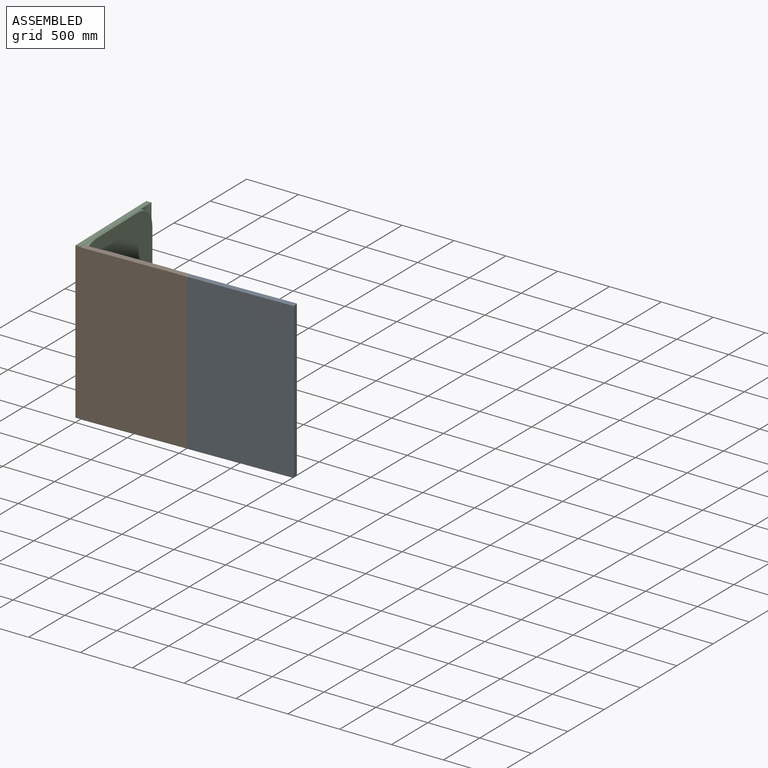
[diagram: assembled view]
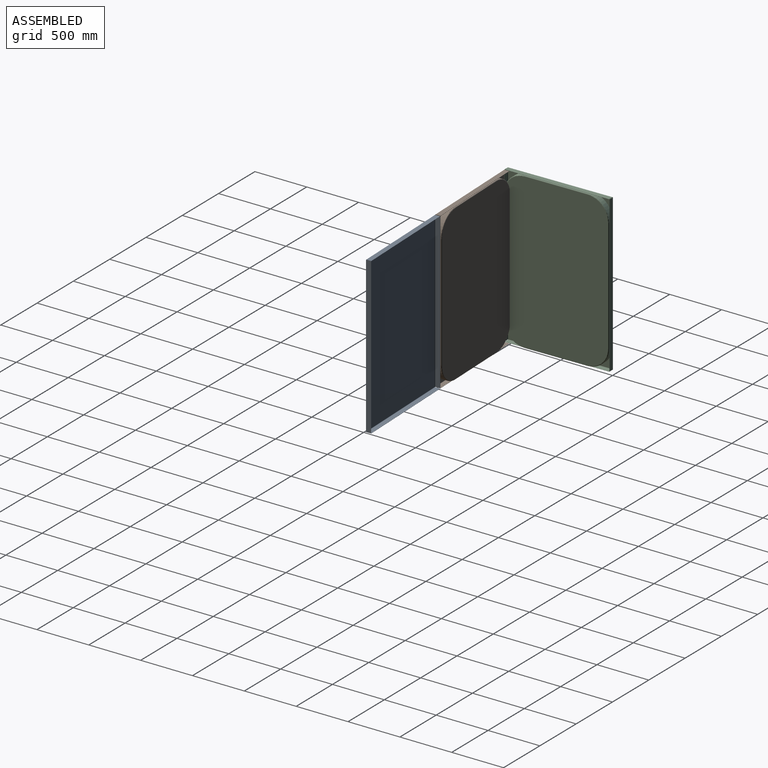
[diagram: assembled view, second angle]
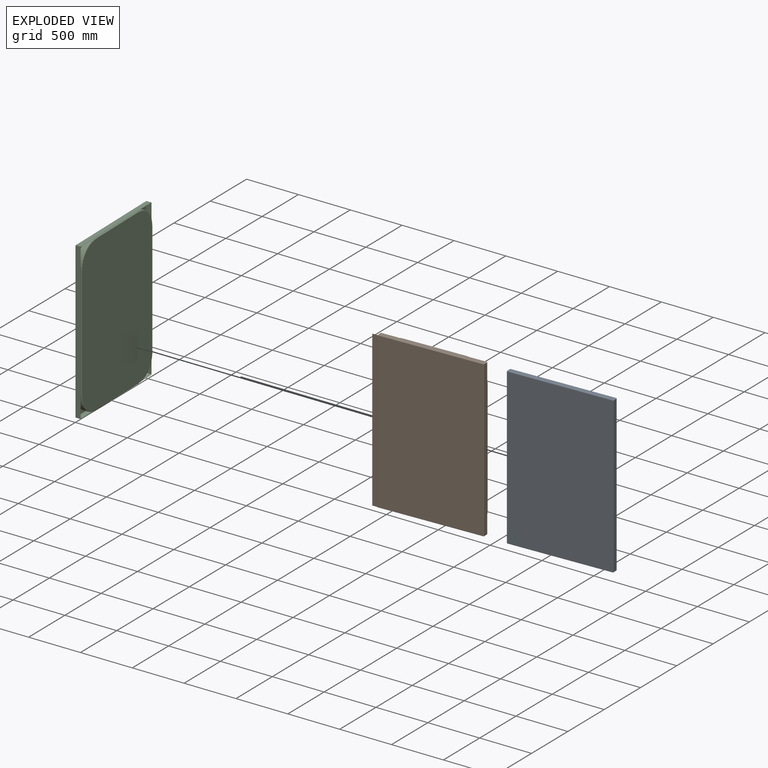
[diagram: exploded view]
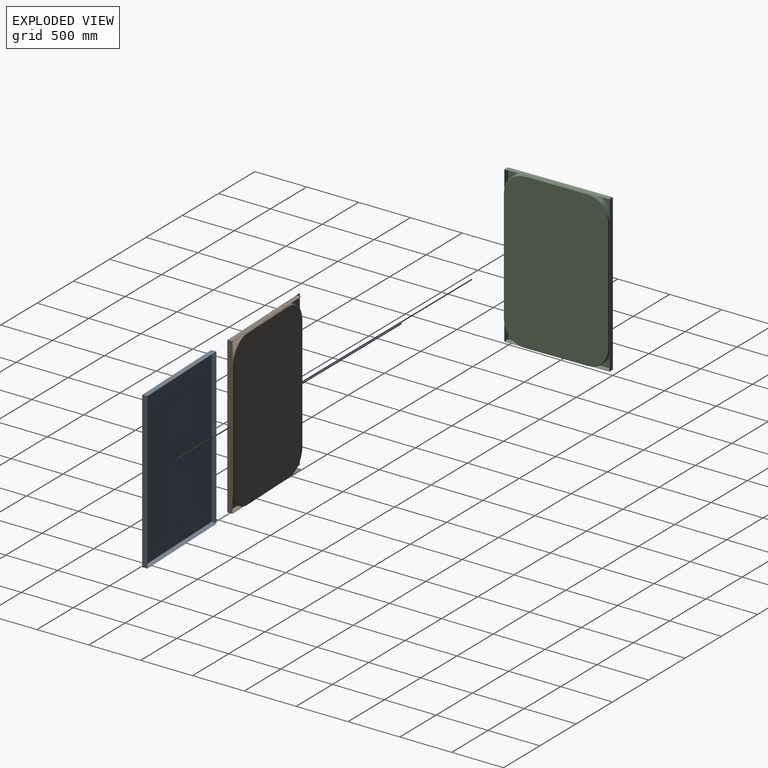
[diagram: exploded view, second angle]
ASSEMBLY  parts=3 mates=2
PART A: 42 faces, bbox 1003.2x50x1503.2 mm
  f0: plane 1495.4x995.4mm, normal (0,1,0), area 1488521.2mm2, adj f12,f22,f32,f41
  f1: plane 1495.4x995.4mm, normal (0,-1,0), area 1488521.2mm2, adj f11,f21,f31,f40
  f2: plane 2.3x1.6mm, normal (0,-1,0), area 3.7mm2, adj f6,f7,f8,f9
  f3: plane 1500x1.6mm, normal (0,1,0), area 2400mm2, adj f4,f6,f7,f8
  f4: plane 46.1x1.6mm, normal (0,0,-1), area 73.8mm2, adj f3,f5,f7,f8
  f5: plane 2.3x1.6mm, normal (0,-1,0), area 3.7mm2, adj f4,f7,f8,f10
  f6: plane 46.1x1.6mm, normal (0,0,1), area 73.8mm2, adj f2,f3,f7,f8
  f7: plane 1500x46.1mm, normal (-1,0,0), area 69150mm2, adj f2,f3,f4,f5,f6,f12
  f8: plane 1500x46.1mm, normal (1,0,0), area 69150mm2, adj f2,f3,f4,f5,f6,f11
  f9: plane 3.9x3.9mm, normal (0,0,1), area 7.8mm2, adj f2,f11,f12,f38
  f10: plane 3.9x3.9mm, normal (0,0,-1), area 7.8mm2, adj f5,f11,f12,f20
  f11: cylinder r=3.9mm len=1495.4mm, axis (0,0,1), area 9161mm2, adj f1,f8,f9,f10
  f12: cylinder r=2.3mm len=1495.4mm, axis (0,0,1), area 5402.6mm2, adj f0,f7,f9,f10
  f13: plane 997.7x1.6mm, normal (0,1,0), area 1596.3mm2, adj f14,f16,f17,f18
  f14: plane 46.1x1.6mm, normal (-1,0,0), area 73.8mm2, adj f13,f15,f17,f18
  f15: plane 2.3x1.6mm, normal (0,-1,0), area 3.7mm2, adj f14,f17,f18,f19
  f16: plane 46.1x1.6mm, normal (1,0,0), area 73.8mm2, adj f13,f17,f18,f20
  f17: plane 997.7x46.1mm, normal (0,0,1), area 45994mm2, adj f13,f14,f15,f16,f22
  f18: plane 997.7x46.1mm, normal (0,0,-1), area 45994mm2, adj f13,f14,f15,f16,f21
  f19: plane 3.9x3.9mm, normal (-1,0,0), area 7.8mm2, adj f15,f21,f22,f29
  f20: plane 3.9x3.9mm, normal (1,0,0), area 7.8mm2, adj f10,f16,f21,f22
  f21: cylinder r=3.9mm len=995.4mm, axis (-1,0,0), area 6097.9mm2, adj f1,f18,f19,f20
  f22: cylinder r=2.3mm len=995.4mm, axis (-1,0,0), area 3596.2mm2, adj f0,f17,f19,f20
  f23: plane 1497.7x1.6mm, normal (0,1,0), area 2396.3mm2, adj f24,f26,f27,f28
  f24: plane 46.1x1.6mm, normal (0,0,1), area 73.8mm2, adj f23,f25,f27,f28
  f25: plane 2.3x1.6mm, normal (0,-1,0), area 3.7mm2, adj f24,f27,f28,f30
  f26: plane 46.1x1.6mm, normal (0,0,-1), area 73.8mm2, adj f23,f27,f28,f29
  f27: plane 1497.7x46.1mm, normal (1,0,0), area 69044mm2, adj f23,f24,f25,f26,f32
  f28: plane 1497.7x46.1mm, normal (-1,0,0), area 69044mm2, adj f23,f24,f25,f26,f31
  f29: plane 3.9x3.9mm, normal (0,0,-1), area 7.8mm2, adj f19,f26,f31,f32
  f30: plane 3.9x3.9mm, normal (0,0,1), area 7.8mm2, adj f25,f31,f32,f39
  f31: cylinder r=3.9mm len=1495.4mm, axis (0,0,-1), area 9161mm2, adj f1,f28,f29,f30
  f32: cylinder r=2.3mm len=1495.4mm, axis (0,0,-1), area 5402.6mm2, adj f0,f27,f29,f30
  f33: plane 995.4x1.6mm, normal (0,1,0), area 1592.6mm2, adj f34,f35,f36,f37
  f34: plane 46.1x1.6mm, normal (1,0,0), area 73.8mm2, adj f33,f36,f37,f38
  f35: plane 46.1x1.6mm, normal (-1,0,0), area 73.8mm2, adj f33,f36,f37,f39
  f36: plane 995.4x46.1mm, normal (0,0,-1), area 45887.9mm2, adj f33,f34,f35,f41
  f37: plane 995.4x46.1mm, normal (0,0,1), area 45887.9mm2, adj f33,f34,f35,f40
  f38: plane 3.9x3.9mm, normal (1,0,0), area 7.8mm2, adj f9,f34,f40,f41
  f39: plane 3.9x3.9mm, normal (-1,0,0), area 7.8mm2, adj f30,f35,f40,f41
  f40: cylinder r=3.9mm len=995.4mm, axis (1,0,0), area 6097.9mm2, adj f1,f37,f38,f39
  f41: cylinder r=2.3mm len=995.4mm, axis (1,0,0), area 3596.2mm2, adj f0,f36,f38,f39
PART B: 67 faces, bbox 1066.5x61.6x1533 mm
  f0: plane 1500x46.1mm, normal (-1,0,0), area 21410mm2, adj f5,f6,f7,f8,f9,f14,f43,f45
  f1: plane 997.7x46.1mm, normal (0,0,1), area 19954mm2, adj f15,f16,f17,f18,f23,f43,f49,f62
  f2: plane 997.68x46.1mm, normal (0,0,-1), area 19953mm2, adj f34,f35,f36,f41,f45,f47,f63
  f3: plane 1495.4x997.68mm, normal (0,1,0), area 49471.5mm2, adj f14,f23,f33,f41,f59,f60,f61,f62
  f4: plane 1495.4x997.68mm, normal (0,-1,0), area 1491930.6mm2, adj f13,f22,f32,f40
  f5: plane 2.3x1.6mm, normal (0,-1,0), area 3.7mm2, adj f0,f9,f10,f11
  f6: plane 1500x1.6mm, normal (0,1,0), area 2400mm2, adj f0,f7,f9,f10,f44
  f7: plane 46.1x1.6mm, normal (0,0,-1), area 73.8mm2, adj f0,f6,f8,f10
  f8: plane 2.3x1.6mm, normal (0,-1,0), area 3.7mm2, adj f0,f7,f10,f12
  f9: plane 46.1x1.6mm, normal (0,0,1), area 73.8mm2, adj f0,f5,f6,f10
  f10: plane 1500x46.1mm, normal (1,0,0), area 69150mm2, adj f5,f6,f7,f8,f9,f13
  f11: plane 3.9x3.9mm, normal (0,0,1), area 7.8mm2, adj f5,f13,f14,f38
  f12: plane 3.9x3.9mm, normal (0,0,-1), area 7.8mm2, adj f8,f13,f14,f21
  f13: cylinder r=3.9mm len=1495.4mm, axis (0,0,1), area 9161mm2, adj f4,f10,f11,f12
  f14: cylinder r=2.3mm len=1495.4mm, axis (0,0,1), area 5402.6mm2, adj f0,f3,f11,f12
  f15: plane 997.7x1.6mm, normal (0,1,0), area 1596.3mm2, adj f1,f16,f18,f19,f42
  f16: plane 46.1x1.6mm, normal (-1,0,0), area 73.8mm2, adj f1,f15,f17,f19
  f17: plane 1.6x0.02mm, normal (0,-1,0), area 0mm2, adj f1,f16,f19,f20
  f18: plane 46.1x1.6mm, normal (1,0,0), area 73.8mm2, adj f1,f15,f19,f21
  f19: plane 997.7x46.1mm, normal (0,0,-1), area 45994mm2, adj f15,f16,f17,f18,f22
  f20: plane 3.9x3.9mm, normal (-1,0,0), area 7.8mm2, adj f17,f22,f23,f30
  f21: plane 3.9x3.9mm, normal (1,0,0), area 7.8mm2, adj f12,f18,f22,f23
  f22: cylinder r=3.9mm len=997.68mm, axis (-1,0,0), area 6111.9mm2, adj f4,f19,f20,f21
  f23: cylinder r=2.3mm len=997.68mm, axis (-1,0,0), area 3604.4mm2, adj f1,f3,f20,f21
  f24: plane 1497.7x1.6mm, normal (-1,0.02,0), area 2396.3mm2, adj f25,f27,f28,f29
  f25: plane 49.99x2.47mm, normal (0,0,1), area 79.9mm2, adj f24,f26,f28,f29
  f26: plane 2.3x1.6mm, normal (1,-0.02,0), area 3.7mm2, adj f25,f28,f29,f31
  f27: plane 49.99x2.47mm, normal (0,0,-1), area 79.9mm2, adj f24,f28,f29,f30
  f28: plane 1497.7x49.96mm, normal (0.02,1,0), area 74834mm2, adj f24,f25,f26,f27,f33
  f29: plane 1497.7x49.96mm, normal (-0.02,-1,0), area 74834mm2, adj f24,f25,f26,f27,f32
  f30: plane 1.6x0.07mm, normal (0,0,-1), area 0.1mm2, adj f20,f27,f32,f33
  f31: plane 1.6x0.07mm, normal (0,0,1), area 0.1mm2, adj f26,f32,f33,f39
  f32: cylinder r=3.9mm len=1495.4mm, axis (0,0,-1), area 101.8mm2, adj f4,f29,f30,f31
  f33: cylinder r=2.3mm len=1495.4mm, axis (0,0,-1), area 60mm2, adj f3,f28,f30,f31
  f34: plane 997.68x1.6mm, normal (0,1,0), area 1596.3mm2, adj f2,f35,f36,f37,f46
  f35: plane 46.1x1.6mm, normal (1,0,0), area 73.8mm2, adj f2,f34,f37,f38
  f36: plane 46.1x1.6mm, normal (-1,0,0), area 73.8mm2, adj f2,f34,f37,f39
  f37: plane 997.68x46.1mm, normal (0,0,1), area 45993mm2, adj f34,f35,f36,f40
  f38: plane 3.9x3.9mm, normal (1,0,0), area 7.8mm2, adj f11,f35,f40,f41
  f39: plane 3.9x3.9mm, normal (-1,0,0), area 7.8mm2, adj f31,f36,f40,f41
  f40: cylinder r=3.9mm len=997.68mm, axis (1,0,0), area 6111.9mm2, adj f4,f37,f38,f39
  f41: cylinder r=2.3mm len=997.68mm, axis (1,0,0), area 3604.4mm2, adj f2,f3,f38,f39
  f42: plane 600x6.6mm, normal (0,0,-1), area 3960mm2, adj f15,f43,f49,f54
  f43: cylinder r=200mm len=200mm, axis (0,1,0), area 15708mm2, adj f0,f1,f42,f44,f52,f60
  f44: plane 1100x6.6mm, normal (1,0,0), area 7260mm2, adj f6,f43,f45,f51
  f45: cylinder r=200mm len=200mm, axis (0,1,0), area 15708mm2, adj f0,f2,f44,f46,f53,f61
  f46: plane 600x6.6mm, normal (0,0,1), area 3960mm2, adj f34,f45,f47,f55
  f47: cylinder r=200mm len=200mm, axis (0,1,0), area 15708mm2, adj f2,f46,f48,f57,f65
  f48: plane 1100x50mm, normal (-1,0,0), area 55000mm2, adj f47,f49,f58,f66
  f49: cylinder r=200mm len=200mm, axis (0,1,0), area 15708mm2, adj f1,f42,f48,f56,f64
  f50: plane 1490x990mm, normal (0,1,0), area 1442459.1mm2, adj f51,f52,f53,f54,f55,f56,f57,f58
  f51: cylinder r=5mm len=1100mm, axis (0,0,1), area 8639.4mm2, adj f44,f50,f52,f53
  f52: torus R=195mm, axis (0,-1,0), area 2445mm2, adj f43,f50,f51,f54
  f53: torus R=195mm, axis (0,-1,0), area 2445mm2, adj f45,f50,f51,f55
  f54: cylinder r=5mm len=600mm, axis (1,0,0), area 4712.4mm2, adj f42,f50,f52,f56
  f55: cylinder r=5mm len=600mm, axis (-1,0,0), area 4712.4mm2, adj f46,f50,f53,f57
  f56: torus R=195mm, axis (0,-1,0), area 2445mm2, adj f49,f50,f54,f58
  f57: torus R=195mm, axis (0,-1,0), area 2445mm2, adj f47,f50,f55,f58
  f58: cylinder r=5mm len=1100mm, axis (0,0,-1), area 8639.4mm2, adj f48,f50,f56,f57
  f59: cylinder r=5mm len=1100mm, axis (0,0,-1), area 8639.4mm2, adj f0,f3,f60,f61
  f60: torus R=195mm, axis (0,-1,0), area 2445mm2, adj f3,f43,f59,f62
  f61: torus R=195mm, axis (0,-1,0), area 2445mm2, adj f3,f45,f59,f63
  f62: cylinder r=5mm len=600mm, axis (-1,0,0), area 4712.4mm2, adj f1,f3,f60,f64
  f63: cylinder r=5mm len=600mm, axis (1,0,0), area 4712.4mm2, adj f2,f3,f61,f65
  f64: torus R=195mm, axis (0,-1,0), area 2445mm2, adj f3,f49,f62,f66
  f65: torus R=195mm, axis (0,-1,0), area 2445mm2, adj f3,f47,f63,f66
  f66: cylinder r=5mm len=1100mm, axis (0,0,1), area 8639.4mm2, adj f3,f48,f64,f65
PART C: 67 faces, bbox 1033x61.6x1533 mm
  f0: plane 1500x46.1mm, normal (-1,0,0), area 21410mm2, adj f6,f7,f8,f9,f10,f15,f44,f46
  f1: plane 997.7x46.1mm, normal (0,0,1), area 19954mm2, adj f16,f17,f18,f19,f24,f44,f49,f62
  f2: plane 1497.7x46.1mm, normal (1,0,0), area 21304mm2, adj f25,f26,f27,f28,f33,f48,f49,f66
  f3: plane 995.4x46.1mm, normal (0,0,-1), area 19847.9mm2, adj f34,f35,f36,f41,f46,f48,f63
  f4: plane 1495.4x995.4mm, normal (0,1,0), area 46062.1mm2, adj f15,f24,f33,f41,f59,f60,f61,f62
  f5: plane 1495.4x995.4mm, normal (0,-1,0), area 1488521.2mm2, adj f14,f23,f32,f40
  f6: plane 2.3x1.6mm, normal (0,-1,0), area 3.7mm2, adj f0,f10,f11,f12
  f7: plane 1500x1.6mm, normal (0,1,0), area 2400mm2, adj f0,f8,f10,f11,f45
  f8: plane 46.1x1.6mm, normal (0,0,-1), area 73.8mm2, adj f0,f7,f9,f11
  f9: plane 2.3x1.6mm, normal (0,-1,0), area 3.7mm2, adj f0,f8,f11,f13
  f10: plane 46.1x1.6mm, normal (0,0,1), area 73.8mm2, adj f0,f6,f7,f11
  f11: plane 1500x46.1mm, normal (1,0,0), area 69150mm2, adj f6,f7,f8,f9,f10,f14
  f12: plane 3.9x3.9mm, normal (0,0,1), area 7.8mm2, adj f6,f14,f15,f38
  f13: plane 3.9x3.9mm, normal (0,0,-1), area 7.8mm2, adj f9,f14,f15,f22
  f14: cylinder r=3.9mm len=1495.4mm, axis (0,0,1), area 9161mm2, adj f5,f11,f12,f13
  f15: cylinder r=2.3mm len=1495.4mm, axis (0,0,1), area 5402.6mm2, adj f0,f4,f12,f13
  f16: plane 997.7x1.6mm, normal (0,1,0), area 1596.3mm2, adj f1,f17,f19,f20,f42
  f17: plane 46.1x1.6mm, normal (-1,0,0), area 73.8mm2, adj f1,f16,f18,f20
  f18: plane 2.3x1.6mm, normal (0,-1,0), area 3.7mm2, adj f1,f17,f20,f21
  f19: plane 46.1x1.6mm, normal (1,0,0), area 73.8mm2, adj f1,f16,f20,f22
  f20: plane 997.7x46.1mm, normal (0,0,-1), area 45994mm2, adj f16,f17,f18,f19,f23
  f21: plane 3.9x3.9mm, normal (-1,0,0), area 7.8mm2, adj f18,f23,f24,f30
  f22: plane 3.9x3.9mm, normal (1,0,0), area 7.8mm2, adj f13,f19,f23,f24
  f23: cylinder r=3.9mm len=995.4mm, axis (-1,0,0), area 6097.9mm2, adj f5,f20,f21,f22
  f24: cylinder r=2.3mm len=995.4mm, axis (-1,0,0), area 3596.2mm2, adj f1,f4,f21,f22
  f25: plane 1497.7x1.6mm, normal (0,1,0), area 2396.3mm2, adj f2,f26,f28,f29,f43
  f26: plane 46.1x1.6mm, normal (0,0,1), area 73.8mm2, adj f2,f25,f27,f29
  f27: plane 2.3x1.6mm, normal (0,-1,0), area 3.7mm2, adj f2,f26,f29,f31
  f28: plane 46.1x1.6mm, normal (0,0,-1), area 73.8mm2, adj f2,f25,f29,f30
  f29: plane 1497.7x46.1mm, normal (-1,0,0), area 69044mm2, adj f25,f26,f27,f28,f32
  f30: plane 3.9x3.9mm, normal (0,0,-1), area 7.8mm2, adj f21,f28,f32,f33
  f31: plane 3.9x3.9mm, normal (0,0,1), area 7.8mm2, adj f27,f32,f33,f39
  f32: cylinder r=3.9mm len=1495.4mm, axis (0,0,-1), area 9161mm2, adj f5,f29,f30,f31
  f33: cylinder r=2.3mm len=1495.4mm, axis (0,0,-1), area 5402.6mm2, adj f2,f4,f30,f31
  f34: plane 995.4x1.6mm, normal (0,1,0), area 1592.6mm2, adj f3,f35,f36,f37,f47
  f35: plane 46.1x1.6mm, normal (1,0,0), area 73.8mm2, adj f3,f34,f37,f38
  f36: plane 46.1x1.6mm, normal (-1,0,0), area 73.8mm2, adj f3,f34,f37,f39
  f37: plane 995.4x46.1mm, normal (0,0,1), area 45887.9mm2, adj f34,f35,f36,f40
  f38: plane 3.9x3.9mm, normal (1,0,0), area 7.8mm2, adj f12,f35,f40,f41
  f39: plane 3.9x3.9mm, normal (-1,0,0), area 7.8mm2, adj f31,f36,f40,f41
  f40: cylinder r=3.9mm len=995.4mm, axis (1,0,0), area 6097.9mm2, adj f5,f37,f38,f39
  f41: cylinder r=2.3mm len=995.4mm, axis (1,0,0), area 3596.2mm2, adj f3,f4,f38,f39
  f42: plane 600x6.6mm, normal (0,0,-1), area 3960mm2, adj f16,f44,f49,f54
  f43: plane 1100x6.6mm, normal (-1,0,0), area 7260mm2, adj f25,f48,f49,f58
  f44: cylinder r=200mm len=200mm, axis (0,1,0), area 15708mm2, adj f0,f1,f42,f45,f52,f60
  f45: plane 1100x6.6mm, normal (1,0,0), area 7260mm2, adj f7,f44,f46,f51
  f46: cylinder r=200mm len=200mm, axis (0,1,0), area 15708mm2, adj f0,f3,f45,f47,f53,f61
  f47: plane 600x6.6mm, normal (0,0,1), area 3960mm2, adj f34,f46,f48,f55
  f48: cylinder r=200mm len=200mm, axis (0,1,0), area 15708mm2, adj f2,f3,f43,f47,f57,f65
  f49: cylinder r=200mm len=200mm, axis (0,1,0), area 15708mm2, adj f1,f2,f42,f43,f56,f64
  f50: plane 1490x990mm, normal (0,1,0), area 1442459.1mm2, adj f51,f52,f53,f54,f55,f56,f57,f58
  f51: cylinder r=5mm len=1100mm, axis (0,0,1), area 8639.4mm2, adj f45,f50,f52,f53
  f52: torus R=195mm, axis (0,-1,0), area 2445mm2, adj f44,f50,f51,f54
  f53: torus R=195mm, axis (0,-1,0), area 2445mm2, adj f46,f50,f51,f55
  f54: cylinder r=5mm len=600mm, axis (1,0,0), area 4712.4mm2, adj f42,f50,f52,f56
  f55: cylinder r=5mm len=600mm, axis (-1,0,0), area 4712.4mm2, adj f47,f50,f53,f57
  f56: torus R=195mm, axis (0,-1,0), area 2445mm2, adj f49,f50,f54,f58
  f57: torus R=195mm, axis (0,-1,0), area 2445mm2, adj f48,f50,f55,f58
  f58: cylinder r=5mm len=1100mm, axis (0,0,-1), area 8639.4mm2, adj f43,f50,f56,f57
  f59: cylinder r=5mm len=1100mm, axis (0,0,-1), area 8639.4mm2, adj f0,f4,f60,f61
  f60: torus R=195mm, axis (0,-1,0), area 2445mm2, adj f4,f44,f59,f62
  f61: torus R=195mm, axis (0,-1,0), area 2445mm2, adj f4,f46,f59,f63
  f62: cylinder r=5mm len=600mm, axis (-1,0,0), area 4712.4mm2, adj f1,f4,f60,f64
  f63: cylinder r=5mm len=600mm, axis (1,0,0), area 4712.4mm2, adj f3,f4,f61,f65
  f64: torus R=195mm, axis (0,-1,0), area 2445mm2, adj f4,f49,f62,f66
  f65: torus R=195mm, axis (0,-1,0), area 2445mm2, adj f4,f48,f63,f66
  f66: cylinder r=5mm len=1100mm, axis (0,0,1), area 8639.4mm2, adj f2,f4,f64,f65
PLACE A rot(axis=(0,0,1),2deg) t=(1532.56,292.2,-599.75)mm
PLACE B rot(axis=(0,0,1),2deg) t=(529.98,257.19,-648.6)mm
PLACE C rot(axis=(0.7,0.71,0),180deg) t=(743.21,7.76,972.3)mm fixed
MATE fastened B.f28 <-> C.f29  axis (-0.02,1,0) through (31.32,-506.34,161.85)mm
MATE fastened A.f28 <-> B.f10  axis (-1,-0.03,0) through (1056.42,-445.61,160.7)mm
